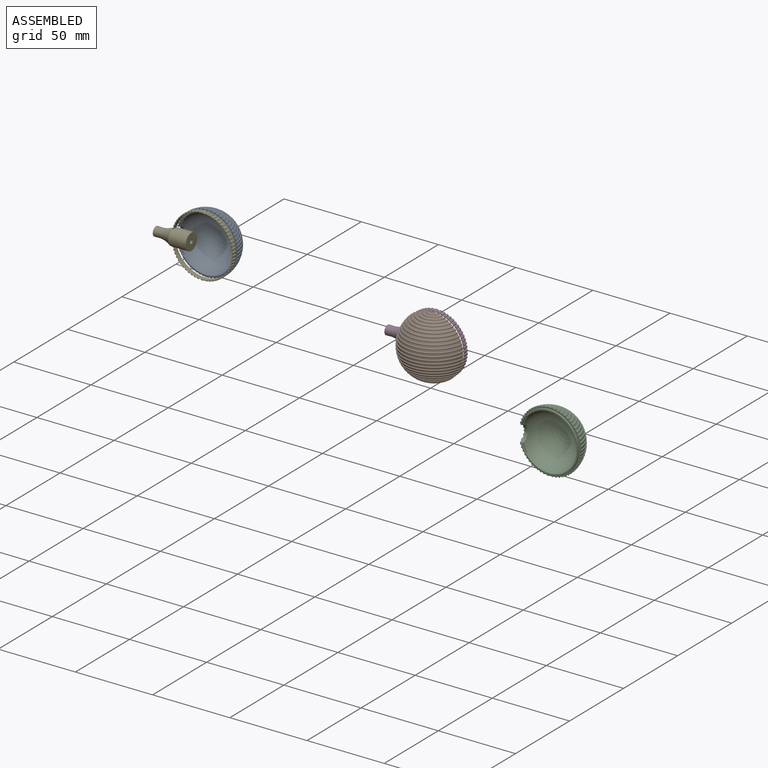
[diagram: assembled view]
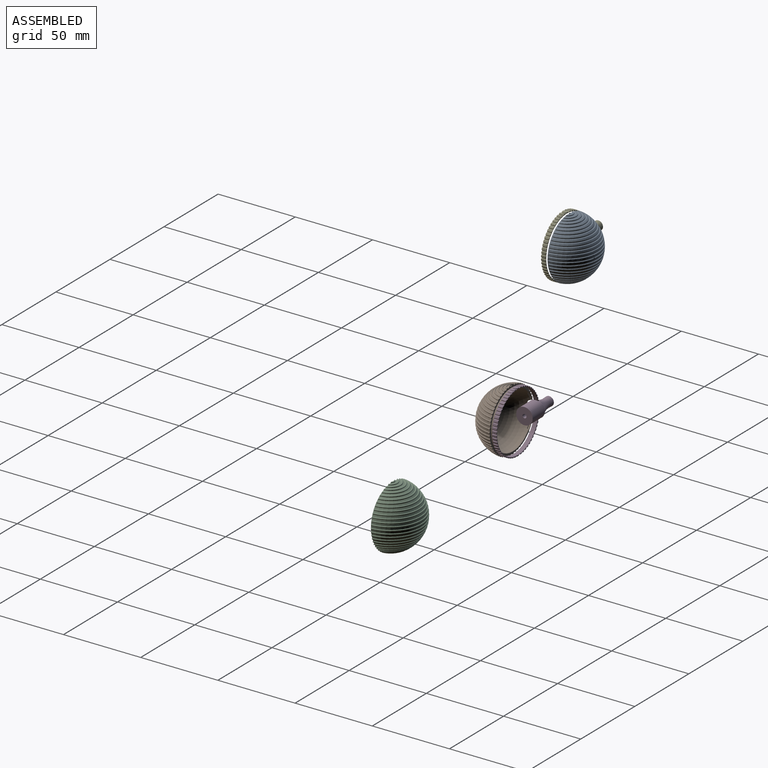
[diagram: assembled view, second angle]
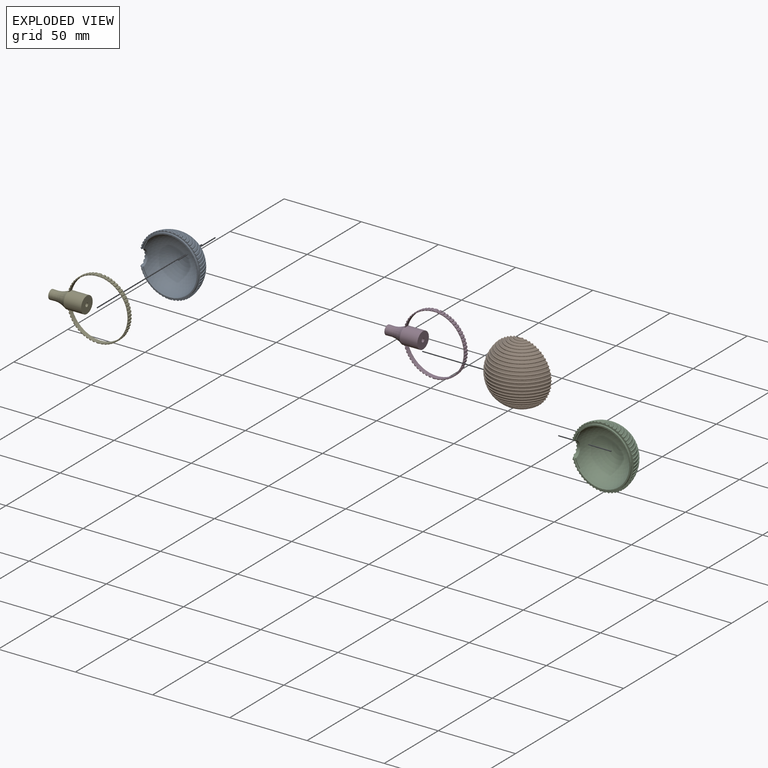
[diagram: exploded view]
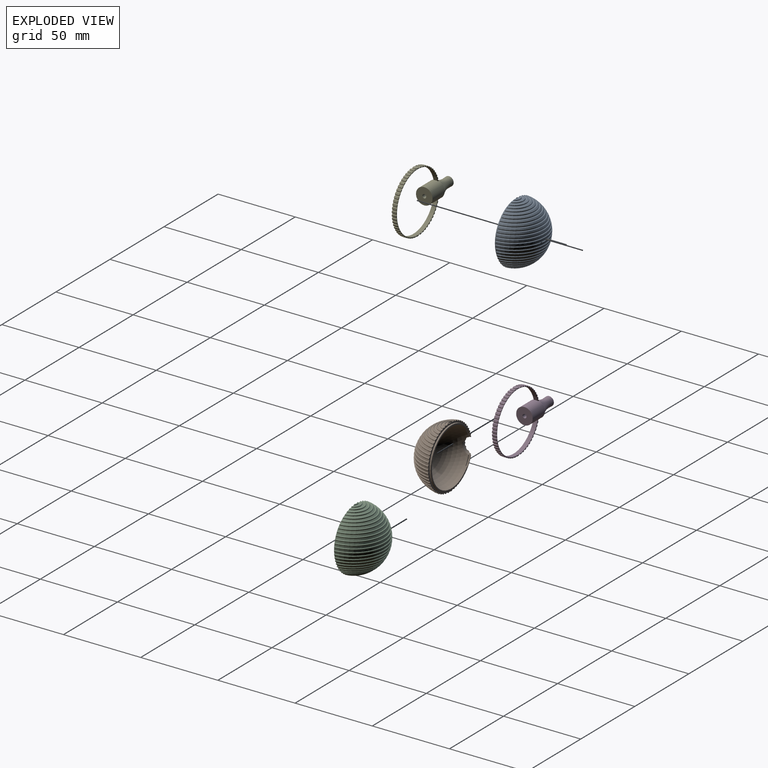
[diagram: exploded view, second angle]
ASSEMBLY  parts=5 mates=2
PART A: 74 faces, bbox 41.2x43.3x21.5 mm
  f0: plane 37.8x37.03mm, normal (0,0,-1), area 79.8mm2, adj f1,f65,f67,f68,f69,f71,f72
  f1: cylinder r=5.35mm len=10.65mm, axis (0,-1,0), area 26.2mm2, adj f0,f2,f6,f10,f17,f18,f19,f20
  f2: plane 39.96x39.28mm, normal (0,0,-1), area 84.5mm2, adj f1,f3,f4,f5,f6,f7,f8,f9
  f3: sphere r=20mm, area 34.2mm2, adj f2,f61,f64
  f4: sphere r=20mm, area 7.3mm2, adj f2,f52,f63
  f5: sphere r=20mm, area 14.5mm2, adj f2,f62,f63
  f6: sphere r=20mm, area 61.2mm2, adj f1,f2,f49,f58
  f7: sphere r=20mm, area 27.9mm2, adj f2,f54,f61
  f8: sphere r=20mm, area 50.1mm2, adj f2,f55,f60
  f9: sphere r=20mm, area 54.4mm2, adj f2,f59,f60
  f10: sphere r=20mm, area 61.5mm2, adj f1,f2,f50,f58
  f11: sphere r=20mm, area 60.9mm2, adj f2,f56,f57
  f12: sphere r=20mm, area 58mm2, adj f2,f56,f59
  f13: sphere r=20mm, area 45.3mm2, adj f2,f51,f55
  f14: sphere r=20mm, area 21.3mm2, adj f2,f54,f62
  f15: sphere r=20mm, area 1.2mm2, adj f2,f53
  f16: sphere r=20mm, area 40mm2, adj f2,f51,f64
  f17: sphere r=20mm, area 62.8mm2, adj f1,f2,f50,f57
  f18: sphere r=20mm, area 61.1mm2, adj f1,f2,f48,f49
  f19: sphere r=20mm, area 61.5mm2, adj f1,f2,f47,f48
  f20: sphere r=20mm, area 62.8mm2, adj f1,f2,f46,f47
  f21: sphere r=20mm, area 60.9mm2, adj f2,f45,f46
  f22: sphere r=20mm, area 58mm2, adj f2,f44,f45
  f23: sphere r=20mm, area 54.4mm2, adj f2,f43,f44
  f24: sphere r=20mm, area 50.1mm2, adj f2,f42,f43
  f25: sphere r=20mm, area 45.3mm2, adj f2,f41,f42
  f26: sphere r=20mm, area 40mm2, adj f2,f40,f41
  f27: sphere r=20mm, area 34.2mm2, adj f2,f39,f40
  f28: sphere r=20mm, area 27.9mm2, adj f2,f38,f39
  f29: sphere r=20mm, area 21.3mm2, adj f2,f37,f38
  f30: sphere r=20mm, area 14.5mm2, adj f2,f36,f37
  f31: sphere r=20mm, area 7.3mm2, adj f2,f35,f36
  f32: sphere r=20mm, area 0.1mm2, adj f2,f35
  f33: sphere r=18mm, area 1916.9mm2, adj f65,f66,f69,f70,f72,f73
  f34: cylinder r=19mm len=38mm, axis (0,0,-1), area 97.9mm2, adj f1,f2,f67
  f35: torus R=2.09mm, axis (1,0,0), area 4.7mm2, adj f2,f31,f32
  f36: torus R=4.16mm, axis (1,0,0), area 15.2mm2, adj f2,f30,f31
  f37: torus R=6.18mm, axis (1,0,0), area 25mm2, adj f2,f29,f30
  f38: torus R=8.13mm, axis (1,0,0), area 34.5mm2, adj f2,f28,f29
  f39: torus R=10mm, axis (1,0,0), area 43.5mm2, adj f2,f27,f28
  f40: torus R=11.76mm, axis (1,0,0), area 51.9mm2, adj f2,f26,f27
  f41: torus R=13.38mm, axis (1,0,0), area 59.8mm2, adj f2,f25,f26
  f42: torus R=14.86mm, axis (1,0,0), area 66.9mm2, adj f2,f24,f25
  f43: torus R=16.18mm, axis (1,0,0), area 73.3mm2, adj f2,f23,f24
  f44: torus R=17.32mm, axis (1,0,0), area 78.8mm2, adj f2,f22,f23
  f45: torus R=18.27mm, axis (1,0,0), area 83.3mm2, adj f2,f21,f22
  f46: torus R=19.02mm, axis (1,0,0), area 86.9mm2, adj f2,f20,f21
  f47: torus R=19.56mm, axis (1,0,0), area 86.6mm2, adj f1,f2,f19,f20
  f48: torus R=19.89mm, axis (1,0,0), area 85.7mm2, adj f1,f2,f18,f19
  f49: torus R=20mm, axis (1,0,0), area 85.6mm2, adj f1,f2,f6,f18
  f50: torus R=19.56mm, axis (-1,0,0), area 86.6mm2, adj f1,f2,f10,f17
  f51: torus R=13.38mm, axis (-1,0,0), area 59.8mm2, adj f2,f13,f16
  f52: torus R=2.09mm, axis (-1,0,0), area 3.3mm2, adj f2,f4,f53
  f53: cone r=2.04mm half-angle=6deg, axis (1,0,0), area 1.6mm2, adj f2,f15,f52
  f54: torus R=8.13mm, axis (-1,0,0), area 34.5mm2, adj f2,f7,f14
  f55: torus R=14.86mm, axis (-1,0,0), area 66.9mm2, adj f2,f8,f13
  f56: torus R=18.27mm, axis (-1,0,0), area 83.3mm2, adj f2,f11,f12
  f57: torus R=19.02mm, axis (-1,0,0), area 86.9mm2, adj f2,f11,f17
  f58: torus R=19.89mm, axis (-1,0,0), area 85.7mm2, adj f1,f2,f6,f10
  f59: torus R=17.32mm, axis (-1,0,0), area 78.8mm2, adj f2,f9,f12
  f60: torus R=16.18mm, axis (-1,0,0), area 73.3mm2, adj f2,f8,f9
  f61: torus R=10mm, axis (-1,0,0), area 43.5mm2, adj f2,f3,f7
  f62: torus R=6.18mm, axis (-1,0,0), area 25mm2, adj f2,f5,f14
  f63: torus R=4.16mm, axis (-1,0,0), area 15.2mm2, adj f2,f4,f5
  f64: torus R=11.76mm, axis (-1,0,0), area 51.9mm2, adj f2,f3,f16
  f65: torus R=18.09mm, axis (0,0,1), area 13.9mm2, adj f0,f33,f69,f72
  f66: torus R=5.45mm, axis (0,-1,0), area 1.8mm2, adj f1,f33,f70,f73
  f67: torus R=18.9mm, axis (0,0,1), area 17mm2, adj f0,f1,f34
  f68: cylinder r=18.5mm len=6.72mm, axis (0,0,-1), area 7.6mm2, adj f0,f1,f69,f70
  f69: cylinder r=6mm len=1.34mm, axis (0,0,-1), area 1.3mm2, adj f0,f33,f65,f68,f70
  f70: plane 6.73x3.58mm, normal (0,0,-1), area 3.8mm2, adj f1,f33,f66,f68,f69
  f71: cylinder r=18.5mm len=6.72mm, axis (0,0,-1), area 7.6mm2, adj f0,f1,f72,f73
  f72: cylinder r=6mm len=1.34mm, axis (0,0,-1), area 1.3mm2, adj f0,f33,f65,f71,f73
  f73: plane 6.73x3.58mm, normal (0,0,-1), area 3.8mm2, adj f1,f33,f66,f71,f72
PART B: 74 faces, bbox 41.2x43.7x21.8 mm
  f0: sphere r=20mm, area 0.1mm2, adj f1,f60
  f1: torus R=2.09mm, axis (1,0,0), area 5.2mm2, adj f0,f2,f60
  f2: sphere r=20mm, area 7.3mm2, adj f1,f3,f60
  f3: torus R=4.16mm, axis (1,0,0), area 16.2mm2, adj f2,f4,f60
  f4: sphere r=20mm, area 14.5mm2, adj f3,f5,f60
  f5: torus R=6.18mm, axis (1,0,0), area 26.4mm2, adj f4,f6,f60
  f6: sphere r=20mm, area 21.3mm2, adj f5,f7,f60
  f7: torus R=8.13mm, axis (1,0,0), area 36.3mm2, adj f6,f8,f60
  f8: sphere r=20mm, area 27.9mm2, adj f7,f9,f60
  f9: torus R=10mm, axis (1,0,0), area 45.8mm2, adj f8,f10,f60
  f10: sphere r=20mm, area 34.2mm2, adj f9,f11,f60
  f11: torus R=11.76mm, axis (1,0,0), area 54.6mm2, adj f10,f12,f60
  f12: sphere r=20mm, area 40mm2, adj f11,f13,f60
  f13: torus R=13.38mm, axis (1,0,0), area 62.9mm2, adj f12,f14,f60
  f14: sphere r=20mm, area 45.3mm2, adj f13,f15,f60
  f15: torus R=14.86mm, axis (1,0,0), area 70.3mm2, adj f14,f16,f60
  f16: sphere r=20mm, area 50.1mm2, adj f15,f17,f60
  f17: torus R=16.18mm, axis (1,0,0), area 77mm2, adj f16,f18,f60
  f18: sphere r=20mm, area 54.4mm2, adj f17,f19,f60
  f19: torus R=17.32mm, axis (1,0,0), area 82.8mm2, adj f18,f20,f60
  f20: sphere r=20mm, area 58mm2, adj f19,f21,f60
  f21: torus R=18.27mm, axis (1,0,0), area 87.6mm2, adj f20,f22,f60
  f22: sphere r=20mm, area 60.9mm2, adj f21,f53,f60
  f23: sphere r=20mm, area 1.2mm2, adj f24,f60
  f24: cone r=2.04mm half-angle=6deg, axis (1,0,0), area 1.7mm2, adj f23,f25,f60
  f25: torus R=2.09mm, axis (-1,0,0), area 3.5mm2, adj f24,f26,f60
  f26: sphere r=20mm, area 7.3mm2, adj f25,f27,f60
  f27: torus R=4.16mm, axis (-1,0,0), area 16.2mm2, adj f26,f28,f60
  f28: sphere r=20mm, area 14.5mm2, adj f27,f29,f60
  f29: torus R=6.18mm, axis (-1,0,0), area 26.4mm2, adj f28,f30,f60
  f30: sphere r=20mm, area 21.3mm2, adj f29,f31,f60
  f31: torus R=8.13mm, axis (-1,0,0), area 36.3mm2, adj f30,f32,f60
  f32: sphere r=20mm, area 27.9mm2, adj f31,f33,f60
  f33: torus R=10mm, axis (-1,0,0), area 45.8mm2, adj f32,f34,f60
  f34: sphere r=20mm, area 34.2mm2, adj f33,f35,f60
  f35: torus R=11.76mm, axis (-1,0,0), area 54.6mm2, adj f34,f36,f60
  f36: sphere r=20mm, area 40mm2, adj f35,f37,f60
  f37: torus R=13.38mm, axis (-1,0,0), area 62.9mm2, adj f36,f38,f60
  f38: sphere r=20mm, area 45.3mm2, adj f37,f39,f60
  f39: torus R=14.86mm, axis (-1,0,0), area 70.3mm2, adj f38,f40,f60
  f40: sphere r=20mm, area 50.1mm2, adj f39,f41,f60
  f41: torus R=16.18mm, axis (-1,0,0), area 77mm2, adj f40,f42,f60
  f42: sphere r=20mm, area 54.4mm2, adj f41,f43,f60
  f43: torus R=17.32mm, axis (-1,0,0), area 82.8mm2, adj f42,f44,f60
  f44: sphere r=20mm, area 58mm2, adj f43,f45,f60
  f45: torus R=18.27mm, axis (-1,0,0), area 87.6mm2, adj f44,f46,f60
  f46: sphere r=20mm, area 60.9mm2, adj f45,f47,f60
  f47: torus R=19.02mm, axis (-1,0,0), area 91.3mm2, adj f46,f48,f60
  f48: sphere r=20mm, area 62.8mm2, adj f47,f58,f60,f61
  f49: sphere r=20mm, area 61.5mm2, adj f58,f59,f60,f61
  f50: sphere r=20mm, area 61.2mm2, adj f58,f59,f60,f62
  f51: sphere r=20mm, area 61.1mm2, adj f58,f60,f62,f64
  f52: sphere r=20mm, area 61.5mm2, adj f58,f60,f63,f64
  f53: torus R=19.02mm, axis (1,0,0), area 91.3mm2, adj f22,f54,f60
  f54: sphere r=20mm, area 62.8mm2, adj f53,f58,f60,f63
  f55: cylinder r=19mm len=38mm, axis (0,0,-1), area 97.9mm2, adj f56,f58,f60
  f56: torus R=18.9mm, axis (0,0,1), area 17mm2, adj f55,f58,f66
  f57: torus R=5.45mm, axis (0,-1,0), area 1.8mm2, adj f58,f67,f70,f73
  f58: cylinder r=5.35mm len=10.65mm, axis (0,-1,0), area 31.3mm2, adj f48,f49,f50,f51,f52,f54,f55,f56
  f59: torus R=19.89mm, axis (-1,0,0), area 90.3mm2, adj f49,f50,f58,f60
  f60: plane 40.86x39.99mm, normal (0,0,-1), area 127mm2, adj f0,f1,f2,f3,f4,f5,f6,f7
  f61: torus R=19.56mm, axis (-1,0,0), area 91.3mm2, adj f48,f49,f58,f60
  f62: torus R=20mm, axis (1,0,0), area 90.1mm2, adj f50,f51,f58,f60
  f63: torus R=19.56mm, axis (1,0,0), area 91.3mm2, adj f52,f54,f58,f60
  f64: torus R=19.89mm, axis (1,0,0), area 90.3mm2, adj f51,f52,f58,f60
  f65: torus R=18.09mm, axis (0,0,1), area 13.9mm2, adj f66,f67,f69,f72
  f66: plane 37.8x37.03mm, normal (0,0,-1), area 79.8mm2, adj f56,f58,f65,f68,f69,f71,f72
  f67: sphere r=18mm, area 1916.9mm2, adj f57,f65,f69,f70,f72,f73
  f68: cylinder r=18.5mm len=6.72mm, axis (0,0,-1), area 7.6mm2, adj f58,f66,f69,f70
  f69: cylinder r=6mm len=1.34mm, axis (0,0,-1), area 1.3mm2, adj f65,f66,f67,f68,f70
  f70: plane 6.73x3.58mm, normal (0,0,-1), area 3.8mm2, adj f57,f58,f67,f68,f69
  f71: cylinder r=18.5mm len=6.72mm, axis (0,0,-1), area 7.6mm2, adj f58,f66,f72,f73
  f72: cylinder r=6mm len=1.34mm, axis (0,0,-1), area 1.3mm2, adj f65,f66,f67,f71,f73
  f73: plane 6.73x3.58mm, normal (0,0,-1), area 3.8mm2, adj f57,f58,f67,f71,f72
PART C: same geometry as B
PART D: 227 faces, bbox 52.3x10.8x42.5 mm
  f0: plane 0.82x0.76mm, normal (0,-1,0), area 0.3mm2, adj f109,f185,f219,f224
  f1: plane 1.75x1.01mm, normal (0,-1,0), area 0.6mm2, adj f140,f182,f185,f224
  f2: plane 1.67x1.13mm, normal (0,-1,0), area 0.6mm2, adj f144,f182,f184,f224
  f3: plane 1.57x1.24mm, normal (0,-1,0), area 0.6mm2, adj f142,f180,f184,f224
  f4: plane 1.47x1.34mm, normal (0,-1,0), area 0.6mm2, adj f146,f178,f180,f224
  f5: plane 1.42x1.41mm, normal (0,-1,0), area 0.6mm2, adj f148,f176,f178,f224
  f6: plane 1.49x1.34mm, normal (0,-1,0), area 0.6mm2, adj f150,f174,f176,f224
  f7: plane 1.6x1.25mm, normal (0,-1,0), area 0.6mm2, adj f152,f168,f174,f224
  f8: plane 1.71x1.15mm, normal (0,-1,0), area 0.6mm2, adj f158,f166,f168,f224
  f9: plane 1.82x1.04mm, normal (0,-1,0), area 0.6mm2, adj f160,f166,f172,f224
  f10: plane 1.96x0.93mm, normal (0,-1,0), area 0.7mm2, adj f154,f170,f172,f224
  f11: plane 2.17x0.73mm, normal (0,-1,0), area 0.7mm2, adj f156,f164,f170,f224
  f12: plane 2.5x0.53mm, normal (0,-1,0), area 0.7mm2, adj f162,f163,f164,f224
  f13: plane 2.17x0.73mm, normal (0,-1,0), area 0.7mm2, adj f157,f163,f169,f224
  f14: plane 1.96x0.93mm, normal (0,-1,0), area 0.7mm2, adj f155,f169,f171,f224
  f15: plane 1.82x1.04mm, normal (0,-1,0), area 0.6mm2, adj f161,f165,f171,f224
  f16: plane 1.71x1.15mm, normal (0,-1,0), area 0.6mm2, adj f159,f165,f167,f224
  f17: plane 1.6x1.25mm, normal (0,-1,0), area 0.6mm2, adj f153,f167,f173,f224
  f18: plane 1.49x1.34mm, normal (0,-1,0), area 0.6mm2, adj f151,f173,f175,f224
  f19: plane 1.42x1.41mm, normal (0,-1,0), area 0.6mm2, adj f149,f175,f177,f224
  f20: plane 1.47x1.34mm, normal (0,-1,0), area 0.6mm2, adj f147,f177,f179,f224
  f21: plane 1.57x1.24mm, normal (0,-1,0), area 0.6mm2, adj f143,f179,f183,f224
  f22: plane 1.67x1.13mm, normal (0,-1,0), area 0.6mm2, adj f145,f181,f183,f224
  f23: plane 1.75x1.01mm, normal (0,-1,0), area 0.6mm2, adj f139,f181,f186,f224
  f24: plane 1.81x0.88mm, normal (0,-1,0), area 0.6mm2, adj f138,f186,f187,f224
  f25: plane 1.86x0.75mm, normal (0,-1,0), area 0.6mm2, adj f137,f187,f188,f224
  f26: plane 1.88x0.6mm, normal (0,-1,0), area 0.6mm2, adj f141,f188,f189,f224
  f27: plane 1.88x0.6mm, normal (0,-1,0), area 0.6mm2, adj f136,f189,f193,f224
  f28: plane 1.86x0.75mm, normal (0,-1,0), area 0.6mm2, adj f133,f192,f193,f224
  f29: plane 1.82x0.89mm, normal (0,-1,0), area 0.6mm2, adj f134,f190,f192,f224
  f30: plane 1.75x1.01mm, normal (0,-1,0), area 0.6mm2, adj f135,f190,f194,f224
  f31: plane 1.67x1.13mm, normal (0,-1,0), area 0.6mm2, adj f131,f194,f196,f224
  f32: plane 1.57x1.24mm, normal (0,-1,0), area 0.6mm2, adj f129,f196,f198,f224
  f33: plane 1.47x1.34mm, normal (0,-1,0), area 0.6mm2, adj f127,f198,f200,f224
  f34: plane 1.42x1.41mm, normal (0,-1,0), area 0.6mm2, adj f125,f200,f202,f224
  f35: plane 1.49x1.34mm, normal (0,-1,0), area 0.6mm2, adj f123,f202,f204,f224
  f36: plane 1.6x1.25mm, normal (0,-1,0), area 0.6mm2, adj f121,f204,f210,f224
  f37: plane 1.71x1.15mm, normal (0,-1,0), area 0.6mm2, adj f116,f208,f210,f224
  f38: plane 1.82x1.04mm, normal (0,-1,0), area 0.6mm2, adj f118,f208,f214,f224
  f39: plane 1.96x0.93mm, normal (0,-1,0), area 0.7mm2, adj f112,f212,f214,f224
  f40: plane 2.17x0.73mm, normal (0,-1,0), area 0.7mm2, adj f114,f206,f212,f224
  f41: plane 2.5x0.53mm, normal (0,-1,0), area 0.7mm2, adj f119,f206,f207,f224
  f42: plane 2.17x0.73mm, normal (0,-1,0), area 0.7mm2, adj f113,f207,f213,f224
  f43: plane 1.96x0.93mm, normal (0,-1,0), area 0.7mm2, adj f111,f213,f215,f224
  f44: plane 1.82x1.04mm, normal (0,-1,0), area 0.6mm2, adj f117,f209,f215,f224
  f45: plane 1.71x1.15mm, normal (0,-1,0), area 0.6mm2, adj f115,f209,f211,f224
  f46: plane 1.6x1.25mm, normal (0,-1,0), area 0.6mm2, adj f120,f205,f211,f224
  f47: plane 1.49x1.34mm, normal (0,-1,0), area 0.6mm2, adj f122,f203,f205,f224
  f48: plane 1.42x1.41mm, normal (0,-1,0), area 0.6mm2, adj f124,f201,f203,f224
  f49: plane 1.47x1.34mm, normal (0,-1,0), area 0.6mm2, adj f126,f199,f201,f224
  f50: plane 1.57x1.24mm, normal (0,-1,0), area 0.6mm2, adj f128,f197,f199,f224
  f51: plane 1.67x1.13mm, normal (0,-1,0), area 0.6mm2, adj f130,f195,f197,f224
  f52: plane 1.75x1.01mm, normal (0,-1,0), area 0.6mm2, adj f132,f191,f195,f224
  f53: plane 0.82x0.76mm, normal (0,1,0), area 0.3mm2, adj f108,f191,f219,f223
  f54: plane 1.75x1.01mm, normal (0,1,0), area 0.6mm2, adj f132,f191,f195,f223
  f55: plane 1.67x1.13mm, normal (0,1,0), area 0.6mm2, adj f130,f195,f197,f223
  f56: plane 1.57x1.24mm, normal (0,1,0), area 0.6mm2, adj f128,f197,f199,f223
  f57: plane 1.47x1.34mm, normal (0,1,0), area 0.6mm2, adj f126,f199,f201,f223
  f58: plane 1.42x1.41mm, normal (0,1,0), area 0.6mm2, adj f124,f201,f203,f223
  f59: plane 1.49x1.34mm, normal (0,1,0), area 0.6mm2, adj f122,f203,f205,f223
  f60: plane 1.6x1.25mm, normal (0,1,0), area 0.6mm2, adj f120,f205,f211,f223
  f61: plane 1.71x1.15mm, normal (0,1,0), area 0.6mm2, adj f115,f209,f211,f223
  f62: plane 1.82x1.04mm, normal (0,1,0), area 0.6mm2, adj f117,f209,f215,f223
  f63: plane 1.96x0.93mm, normal (0,1,0), area 0.7mm2, adj f111,f213,f215,f223
  f64: plane 2.17x0.73mm, normal (0,1,0), area 0.7mm2, adj f113,f207,f213,f223
  f65: plane 2.5x0.53mm, normal (0,1,0), area 0.7mm2, adj f119,f206,f207,f223
  f66: plane 2.17x0.73mm, normal (0,1,0), area 0.7mm2, adj f114,f206,f212,f223
  f67: plane 1.96x0.93mm, normal (0,1,0), area 0.7mm2, adj f112,f212,f214,f223
  f68: plane 1.82x1.04mm, normal (0,1,0), area 0.6mm2, adj f118,f208,f214,f223
  f69: plane 1.71x1.15mm, normal (0,1,0), area 0.6mm2, adj f116,f208,f210,f223
  f70: plane 1.6x1.25mm, normal (0,1,0), area 0.6mm2, adj f121,f204,f210,f223
  f71: plane 1.49x1.34mm, normal (0,1,0), area 0.6mm2, adj f123,f202,f204,f223
  f72: plane 1.42x1.41mm, normal (0,1,0), area 0.6mm2, adj f125,f200,f202,f223
  f73: plane 1.47x1.34mm, normal (0,1,0), area 0.6mm2, adj f127,f198,f200,f223
  f74: plane 1.57x1.24mm, normal (0,1,0), area 0.6mm2, adj f129,f196,f198,f223
  f75: plane 1.67x1.13mm, normal (0,1,0), area 0.6mm2, adj f131,f194,f196,f223
  f76: plane 1.75x1.01mm, normal (0,1,0), area 0.6mm2, adj f135,f190,f194,f223
  f77: plane 1.82x0.89mm, normal (0,1,0), area 0.6mm2, adj f134,f190,f192,f223
  f78: plane 1.86x0.75mm, normal (0,1,0), area 0.6mm2, adj f133,f192,f193,f223
  f79: plane 1.88x0.6mm, normal (0,1,0), area 0.6mm2, adj f136,f189,f193,f223
  f80: plane 1.88x0.6mm, normal (0,1,0), area 0.6mm2, adj f141,f188,f189,f223
  f81: plane 1.86x0.75mm, normal (0,1,0), area 0.6mm2, adj f137,f187,f188,f223
  f82: plane 1.81x0.88mm, normal (0,1,0), area 0.6mm2, adj f138,f186,f187,f223
  f83: plane 1.75x1.01mm, normal (0,1,0), area 0.6mm2, adj f139,f181,f186,f223
  f84: plane 1.67x1.13mm, normal (0,1,0), area 0.6mm2, adj f145,f181,f183,f223
  f85: plane 1.57x1.24mm, normal (0,1,0), area 0.6mm2, adj f143,f179,f183,f223
  f86: plane 1.47x1.34mm, normal (0,1,0), area 0.6mm2, adj f147,f177,f179,f223
  f87: plane 1.42x1.41mm, normal (0,1,0), area 0.6mm2, adj f149,f175,f177,f223
  f88: plane 1.49x1.34mm, normal (0,1,0), area 0.6mm2, adj f151,f173,f175,f223
  f89: plane 1.6x1.25mm, normal (0,1,0), area 0.6mm2, adj f153,f167,f173,f223
  f90: plane 1.71x1.15mm, normal (0,1,0), area 0.6mm2, adj f159,f165,f167,f223
  f91: plane 1.82x1.04mm, normal (0,1,0), area 0.6mm2, adj f161,f165,f171,f223
  f92: plane 1.96x0.93mm, normal (0,1,0), area 0.7mm2, adj f155,f169,f171,f223
  f93: plane 2.17x0.73mm, normal (0,1,0), area 0.7mm2, adj f157,f163,f169,f223
  f94: plane 2.5x0.53mm, normal (0,1,0), area 0.7mm2, adj f162,f163,f164,f223
  f95: plane 2.17x0.73mm, normal (0,1,0), area 0.7mm2, adj f156,f164,f170,f223
  f96: plane 1.96x0.93mm, normal (0,1,0), area 0.7mm2, adj f154,f170,f172,f223
  f97: plane 1.82x1.04mm, normal (0,1,0), area 0.6mm2, adj f160,f166,f172,f223
  f98: plane 1.71x1.15mm, normal (0,1,0), area 0.6mm2, adj f158,f166,f168,f223
  f99: plane 1.6x1.25mm, normal (0,1,0), area 0.6mm2, adj f152,f168,f174,f223
  f100: plane 1.49x1.34mm, normal (0,1,0), area 0.6mm2, adj f150,f174,f176,f223
  f101: plane 1.42x1.41mm, normal (0,1,0), area 0.6mm2, adj f148,f176,f178,f223
  f102: plane 1.47x1.34mm, normal (0,1,0), area 0.6mm2, adj f146,f178,f180,f223
  f103: plane 1.57x1.24mm, normal (0,1,0), area 0.6mm2, adj f142,f180,f184,f223
  f104: plane 1.67x1.13mm, normal (0,1,0), area 0.6mm2, adj f144,f182,f184,f223
  f105: plane 1.75x1.01mm, normal (0,1,0), area 0.6mm2, adj f140,f182,f185,f223
  f106: plane 0.82x0.76mm, normal (0,-1,0), area 0.3mm2, adj f108,f191,f219,f224
  f107: plane 0.82x0.76mm, normal (0,1,0), area 0.3mm2, adj f109,f185,f219,f223
  f108: sphere r=20mm, area 1.4mm2, adj f53,f106,f191,f220
  f109: sphere r=20mm, area 1.4mm2, adj f0,f107,f185,f220
  f110: cylinder r=19.25mm len=38.5mm, axis (0,1,0), area 286.6mm2, adj f219,f223,f224
  f111: sphere r=20mm, area 3.3mm2, adj f43,f63,f213,f215
  f112: sphere r=20mm, area 3.3mm2, adj f39,f67,f212,f214
  f113: sphere r=20mm, area 3.4mm2, adj f42,f64,f207,f213
  f114: sphere r=20mm, area 3.4mm2, adj f40,f66,f206,f212
  f115: sphere r=20mm, area 3.3mm2, adj f45,f61,f209,f211
  f116: sphere r=20mm, area 3.3mm2, adj f37,f69,f208,f210
  f117: sphere r=20mm, area 3.3mm2, adj f44,f62,f209,f215
  f118: sphere r=20mm, area 3.3mm2, adj f38,f68,f208,f214
  f119: sphere r=20mm, area 7.8mm2, adj f41,f65,f206,f207
  f120: sphere r=20mm, area 3.3mm2, adj f46,f60,f205,f211
  f121: sphere r=20mm, area 3.3mm2, adj f36,f70,f204,f210
  f122: sphere r=20mm, area 3.3mm2, adj f47,f59,f203,f205
  f123: sphere r=20mm, area 3.3mm2, adj f35,f71,f202,f204
  f124: sphere r=20mm, area 3.2mm2, adj f48,f58,f201,f203
  f125: sphere r=20mm, area 3.2mm2, adj f34,f72,f200,f202
  f126: sphere r=20mm, area 3.3mm2, adj f49,f57,f199,f201
  f127: sphere r=20mm, area 3.3mm2, adj f33,f73,f198,f200
  f128: sphere r=20mm, area 3.3mm2, adj f50,f56,f197,f199
  f129: sphere r=20mm, area 3.3mm2, adj f32,f74,f196,f198
  f130: sphere r=20mm, area 3.3mm2, adj f51,f55,f195,f197
  f131: sphere r=20mm, area 3.3mm2, adj f31,f75,f194,f196
  f132: sphere r=20mm, area 3.3mm2, adj f52,f54,f191,f195
  f133: sphere r=20mm, area 3.3mm2, adj f28,f78,f192,f193
  f134: sphere r=20mm, area 3.3mm2, adj f29,f77,f190,f192
  f135: sphere r=20mm, area 3.3mm2, adj f30,f76,f190,f194
  f136: sphere r=20mm, area 3.3mm2, adj f27,f79,f189,f193
  f137: sphere r=20mm, area 3.3mm2, adj f25,f81,f187,f188
  f138: sphere r=20mm, area 3.3mm2, adj f24,f82,f186,f187
  f139: sphere r=20mm, area 3.3mm2, adj f23,f83,f181,f186
  f140: sphere r=20mm, area 3.3mm2, adj f1,f105,f182,f185
  f141: sphere r=20mm, area 3.3mm2, adj f26,f80,f188,f189
  f142: sphere r=20mm, area 3.3mm2, adj f3,f103,f180,f184
  f143: sphere r=20mm, area 3.3mm2, adj f21,f85,f179,f183
  f144: sphere r=20mm, area 3.3mm2, adj f2,f104,f182,f184
  f145: sphere r=20mm, area 3.3mm2, adj f22,f84,f181,f183
  f146: sphere r=20mm, area 3.3mm2, adj f4,f102,f178,f180
  f147: sphere r=20mm, area 3.3mm2, adj f20,f86,f177,f179
  f148: sphere r=20mm, area 3.2mm2, adj f5,f101,f176,f178
  f149: sphere r=20mm, area 3.2mm2, adj f19,f87,f175,f177
  f150: sphere r=20mm, area 3.3mm2, adj f6,f100,f174,f176
  f151: sphere r=20mm, area 3.3mm2, adj f18,f88,f173,f175
  f152: sphere r=20mm, area 3.3mm2, adj f7,f99,f168,f174
  f153: sphere r=20mm, area 3.3mm2, adj f17,f89,f167,f173
  f154: sphere r=20mm, area 3.3mm2, adj f10,f96,f170,f172
  f155: sphere r=20mm, area 3.3mm2, adj f14,f92,f169,f171
  f156: sphere r=20mm, area 3.4mm2, adj f11,f95,f164,f170
  f157: sphere r=20mm, area 3.4mm2, adj f13,f93,f163,f169
  f158: sphere r=20mm, area 3.3mm2, adj f8,f98,f166,f168
  f159: sphere r=20mm, area 3.3mm2, adj f16,f90,f165,f167
  f160: sphere r=20mm, area 3.3mm2, adj f9,f97,f166,f172
  f161: sphere r=20mm, area 3.3mm2, adj f15,f91,f165,f171
  f162: sphere r=20mm, area 7.8mm2, adj f12,f94,f163,f164
  f163: torus R=2.09mm, axis (0,0,-1), area 5.4mm2, adj f12,f13,f93,f94,f157,f162,f223,f224
  f164: torus R=2.09mm, axis (0,0,-1), area 5.4mm2, adj f11,f12,f94,f95,f156,f162,f223,f224
  f165: torus R=8.13mm, axis (0,0,-1), area 4.7mm2, adj f15,f16,f90,f91,f159,f161,f223,f224
  f166: torus R=8.13mm, axis (0,0,-1), area 4.7mm2, adj f8,f9,f97,f98,f158,f160,f223,f224
  f167: torus R=10mm, axis (0,0,-1), area 4.7mm2, adj f16,f17,f89,f90,f153,f159,f223,f224
  f168: torus R=10mm, axis (0,0,-1), area 4.7mm2, adj f7,f8,f98,f99,f152,f158,f223,f224
  f169: torus R=4.16mm, axis (0,0,-1), area 4.8mm2, adj f13,f14,f92,f93,f155,f157,f223,f224
  f170: torus R=4.16mm, axis (0,0,-1), area 4.8mm2, adj f10,f11,f95,f96,f154,f156,f223,f224
  f171: torus R=6.18mm, axis (0,0,-1), area 4.7mm2, adj f14,f15,f91,f92,f155,f161,f223,f224
  f172: torus R=6.18mm, axis (0,0,-1), area 4.7mm2, adj f9,f10,f96,f97,f154,f160,f223,f224
  f173: torus R=11.76mm, axis (0,0,-1), area 4.7mm2, adj f17,f18,f88,f89,f151,f153,f223,f224
  f174: torus R=11.76mm, axis (0,0,-1), area 4.7mm2, adj f6,f7,f99,f100,f150,f152,f223,f224
  f175: torus R=13.38mm, axis (0,0,-1), area 4.7mm2, adj f18,f19,f87,f88,f149,f151,f223,f224
  f176: torus R=13.38mm, axis (0,0,-1), area 4.7mm2, adj f5,f6,f100,f101,f148,f150,f223,f224
  f177: torus R=14.86mm, axis (0,0,-1), area 4.7mm2, adj f19,f20,f86,f87,f147,f149,f223,f224
  f178: torus R=14.86mm, axis (0,0,-1), area 4.7mm2, adj f4,f5,f101,f102,f146,f148,f223,f224
  f179: torus R=16.18mm, axis (0,0,-1), area 4.7mm2, adj f20,f21,f85,f86,f143,f147,f223,f224
  f180: torus R=16.18mm, axis (0,0,-1), area 4.7mm2, adj f3,f4,f102,f103,f142,f146,f223,f224
  f181: torus R=18.27mm, axis (0,0,-1), area 4.7mm2, adj f22,f23,f83,f84,f139,f145,f223,f224
  f182: torus R=18.27mm, axis (0,0,-1), area 4.7mm2, adj f1,f2,f104,f105,f140,f144,f223,f224
  f183: torus R=17.32mm, axis (0,0,-1), area 4.7mm2, adj f21,f22,f84,f85,f143,f145,f223,f224
  f184: torus R=17.32mm, axis (0,0,-1), area 4.7mm2, adj f2,f3,f103,f104,f142,f144,f223,f224
  f185: torus R=19.02mm, axis (0,0,-1), area 4.7mm2, adj f0,f1,f105,f107,f109,f140,f223,f224
  f186: torus R=19.02mm, axis (0,0,-1), area 4.7mm2, adj f23,f24,f82,f83,f138,f139,f223,f224
  f187: torus R=19.56mm, axis (0,0,-1), area 4.7mm2, adj f24,f25,f81,f82,f137,f138,f223,f224
  f188: torus R=19.89mm, axis (0,0,-1), area 4.7mm2, adj f25,f26,f80,f81,f137,f141,f223,f224
  f189: torus R=20mm, axis (0,0,-1), area 4.7mm2, adj f26,f27,f79,f80,f136,f141,f223,f224
  f190: torus R=19.02mm, axis (0,0,-1), area 4.7mm2, adj f29,f30,f76,f77,f134,f135,f223,f224
  f191: torus R=19.02mm, axis (0,0,-1), area 4.7mm2, adj f52,f53,f54,f106,f108,f132,f223,f224
  f192: torus R=19.56mm, axis (0,0,-1), area 4.7mm2, adj f28,f29,f77,f78,f133,f134,f223,f224
  f193: torus R=19.89mm, axis (0,0,-1), area 4.7mm2, adj f27,f28,f78,f79,f133,f136,f223,f224
  f194: torus R=18.27mm, axis (0,0,-1), area 4.7mm2, adj f30,f31,f75,f76,f131,f135,f223,f224
  f195: torus R=18.27mm, axis (0,0,-1), area 4.7mm2, adj f51,f52,f54,f55,f130,f132,f223,f224
  f196: torus R=17.32mm, axis (0,0,-1), area 4.7mm2, adj f31,f32,f74,f75,f129,f131,f223,f224
  f197: torus R=17.32mm, axis (0,0,-1), area 4.7mm2, adj f50,f51,f55,f56,f128,f130,f223,f224
  f198: torus R=16.18mm, axis (0,0,-1), area 4.7mm2, adj f32,f33,f73,f74,f127,f129,f223,f224
  f199: torus R=16.18mm, axis (0,0,-1), area 4.7mm2, adj f49,f50,f56,f57,f126,f128,f223,f224
  f200: torus R=14.86mm, axis (0,0,-1), area 4.7mm2, adj f33,f34,f72,f73,f125,f127,f223,f224
  f201: torus R=14.86mm, axis (0,0,-1), area 4.7mm2, adj f48,f49,f57,f58,f124,f126,f223,f224
  f202: torus R=13.38mm, axis (0,0,-1), area 4.7mm2, adj f34,f35,f71,f72,f123,f125,f223,f224
  f203: torus R=13.38mm, axis (0,0,-1), area 4.7mm2, adj f47,f48,f58,f59,f122,f124,f223,f224
  f204: torus R=11.76mm, axis (0,0,-1), area 4.7mm2, adj f35,f36,f70,f71,f121,f123,f223,f224
  f205: torus R=11.76mm, axis (0,0,-1), area 4.7mm2, adj f46,f47,f59,f60,f120,f122,f223,f224
  f206: torus R=2.09mm, axis (0,0,-1), area 5.4mm2, adj f40,f41,f65,f66,f114,f119,f223,f224
  f207: torus R=2.09mm, axis (0,0,-1), area 5.4mm2, adj f41,f42,f64,f65,f113,f119,f223,f224
  f208: torus R=8.13mm, axis (0,0,-1), area 4.7mm2, adj f37,f38,f68,f69,f116,f118,f223,f224
  f209: torus R=8.13mm, axis (0,0,-1), area 4.7mm2, adj f44,f45,f61,f62,f115,f117,f223,f224
  f210: torus R=10mm, axis (0,0,-1), area 4.7mm2, adj f36,f37,f69,f70,f116,f121,f223,f224
  f211: torus R=10mm, axis (0,0,-1), area 4.7mm2, adj f45,f46,f60,f61,f115,f120,f223,f224
  f212: torus R=4.16mm, axis (0,0,-1), area 4.8mm2, adj f39,f40,f66,f67,f112,f114,f223,f224
  f213: torus R=4.16mm, axis (0,0,-1), area 4.8mm2, adj f42,f43,f63,f64,f111,f113,f223,f224
  f214: torus R=6.18mm, axis (0,0,-1), area 4.7mm2, adj f38,f39,f67,f68,f112,f118,f223,f224
  f215: torus R=6.18mm, axis (0,0,-1), area 4.7mm2, adj f43,f44,f62,f63,f111,f117,f223,f224
  f216: cylinder r=1.25mm len=12mm, axis (1,0,0), area 94.2mm2, adj f217,f218
  f217: plane 4x4mm, normal (-1,0,0), area 7.7mm2, adj f216,f222
  f218: plane 10.7x10.7mm, normal (1,0,0), area 85mm2, adj f216,f219
  f219: cylinder r=5.35mm len=11.27mm, axis (1,0,0), area 374.4mm2, adj f0,f53,f106,f107,f110,f218,f220,f223
  f220: revolved ~11.63x10.66mm, area 268.6mm2, adj f108,f109,f219,f225
  f221: plane 5.8x5.8mm, normal (-1,0,0), area 12.6mm2, adj f225,f226
  f222: cylinder r=2mm len=10.9mm, axis (1,0,0), area 137mm2, adj f217,f226
  f223: torus R=19.45mm, axis (0,-1,0), area 34.8mm2, adj f53,f54,f55,f56,f57,f58,f59,f60
  f224: torus R=19.45mm, axis (0,-1,0), area 34.8mm2, adj f0,f1,f2,f3,f4,f5,f6,f7
  f225: torus R=2.9mm, axis (1,0,0), area 2.9mm2, adj f220,f221
  f226: torus R=2.1mm, axis (1,0,0), area 2mm2, adj f221,f222
PART E: same geometry as D
PLACE A rot(axis=(-0.58,0.58,0.58),120deg) t=(-182.02,-41.22,67.88)mm
PLACE B rot(axis=(0.58,-0.58,0.58),120deg) t=(-66.4,5.13,22.34)mm
PLACE C rot(axis=(-0.58,0.58,0.58),120deg) t=(20.75,-13.63,-4.51)mm
PLACE D t=(-66.4,6.43,22.34)mm
PLACE E t=(-182.02,-42.72,67.88)mm
MATE fastened B.f65 <-> D.f110  axis (0,-1,0) through (-66.4,5.13,22.34)mm
MATE fastened A.f65 <-> E.f110  axis (0,1,0) through (-182.02,-41.22,67.88)mm
